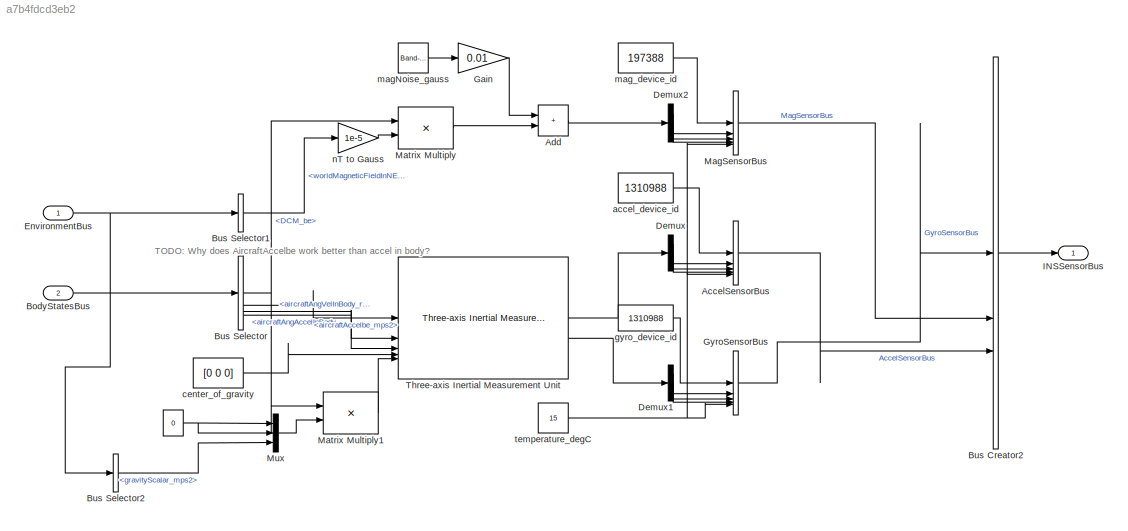
MODEL slx_a7b4fdcd3eb2
KIND model
BLOCK [Constant]  
  OutDataTypeStr = double
  Value = 0
  VectorParams1D = off
BLOCK [BusCreator] AccelSensorBus
  DisplayOption = bar
  InheritFromInputs = off
  Inputs = 5
  OutDataTypeStr = Bus: AccelSensorBus
BLOCK [Sum] Add
  IconShape = rectangular
BLOCK [Inport] BodyStatesBus
  OutDataTypeStr = Bus: BodyStateBus
  Port = 2
BLOCK [BusCreator] Bus Creator2
  DisplayOption = bar
  InheritFromInputs = off
  Inputs = 3
  OutDataTypeStr = Bus: INSSensorBus
BLOCK [BusSelector] Bus Selector
  OutputSignals = DCM_be,aircraftAccelbe_mps2,aircraftAngVelInBody_radps,aircraftAngAccelInBody_radps2
BLOCK [BusSelector] Bus Selector1
  OutputSignals = EarthEnvironment.worldMagneticFieldInNED_nT
BLOCK [BusSelector] Bus Selector2
  OutputSignals = EarthEnvironment.gravityScalar_mps2
BLOCK [Demux] Demux
  Outputs = 3
BLOCK [Demux] Demux1
  Outputs = 3
BLOCK [Demux] Demux2
  Outputs = 3
BLOCK [Inport] EnvironmentBus
  OutDataTypeStr = Bus: EnvironmentBus
BLOCK [Gain] Gain
  Gain = 0.01
BLOCK [BusCreator] GyroSensorBus
  DisplayOption = bar
  InheritFromInputs = off
  Inputs = 5
  OutDataTypeStr = Bus: GyroSensorBus
BLOCK [Outport] INSSensorBus
  OutDataTypeStr = Bus: INSSensorBus
BLOCK [BusCreator] MagSensorBus
  DisplayOption = bar
  InheritFromInputs = off
  Inputs = 5
  OutDataTypeStr = Bus: MagSensorBus
BLOCK [Product] Matrix Multiply
  Multiplication = Matrix(*)
BLOCK [Product] Matrix Multiply1
  Multiplication = Matrix(*)
BLOCK [Mux] Mux
  DisplayOption = bar
  Inputs = 3
BLOCK [Reference] Three-axis Inertial Measurement Unit  REF=aerolibnav/Three-axis Inertial
Measurement Unit
  SourceBlock = aerolibnav/Three-axis Inertial\nMeasurement Unit
  SourceType = Three-axis Inertial Measurement Unit
BLOCK [Constant] accel_device_id
  LockScale = on
  OutDataTypeStr = double
  Value = 1310988
BLOCK [Constant] center_of_gravity
  OutDataTypeStr = double
  Value = [0 0 0]
  VectorParams1D = off
BLOCK [Constant] gyro_device_id
  LockScale = on
  OutDataTypeStr = double
  Value = 1310988
BLOCK [Reference] magNoise_gauss  REF=simulink/Sources/Band-Limited
White Noise
  SourceBlock = simulink/Sources/Band-Limited\nWhite Noise
  SourceType = Band-Limited White Noise.
BLOCK [Constant] mag_device_id
  LockScale = on
  OutDataTypeStr = double
  Value = 197388
BLOCK [Gain] nT to Gauss
  Gain = 1e-5
BLOCK [Constant] temperature_degC
  OutDataTypeStr = Inherit: Inherit via back propagation
  Value = 15
ANNOTATION (root): TODO: Why does AircraftAccelbe work better than accel in body?
NET  :1 -> Mux:1, Mux:2
LINE AccelSensorBus:1 -> Bus Creator2:3
LINE Add:1 -> Demux2:1
LINE BodyStatesBus:1 -> Bus Selector:1
LINE Bus Creator2:1 -> INSSensorBus:1
LINE Bus Selector1:1 -> nT to Gauss:1
LINE Bus Selector2:1 -> Mux:3
NET Bus Selector:1 -> Matrix Multiply1:1, Matrix Multiply:1
LINE Bus Selector:2 -> Three-axis Inertial Measurement Unit:1
LINE Bus Selector:3 -> Three-axis Inertial Measurement Unit:2
LINE Bus Selector:4 -> Three-axis Inertial Measurement Unit:3
LINE Demux1:1 -> GyroSensorBus:2
LINE Demux1:2 -> GyroSensorBus:3
LINE Demux1:3 -> GyroSensorBus:4
LINE Demux2:1 -> MagSensorBus:2
LINE Demux2:2 -> MagSensorBus:3
LINE Demux2:3 -> MagSensorBus:4
LINE Demux:1 -> AccelSensorBus:2
LINE Demux:2 -> AccelSensorBus:3
LINE Demux:3 -> AccelSensorBus:4
NET EnvironmentBus:1 -> Bus Selector1:1, Bus Selector2:1
LINE Gain:1 -> Add:1
LINE GyroSensorBus:1 -> Bus Creator2:1
LINE MagSensorBus:1 -> Bus Creator2:2
LINE Matrix Multiply1:1 -> Three-axis Inertial Measurement Unit:5
LINE Matrix Multiply:1 -> Add:2
LINE Mux:1 -> Matrix Multiply1:2
LINE Three-axis Inertial Measurement Unit:1 -> Demux:1
LINE Three-axis Inertial Measurement Unit:2 -> Demux1:1
LINE accel_device_id:1 -> AccelSensorBus:1
LINE center_of_gravity:1 -> Three-axis Inertial Measurement Unit:4
LINE gyro_device_id:1 -> GyroSensorBus:1
LINE magNoise_gauss:1 -> Gain:1
LINE mag_device_id:1 -> MagSensorBus:1
LINE nT to Gauss:1 -> Matrix Multiply:2
NET temperature_degC:1 -> AccelSensorBus:5, GyroSensorBus:5, MagSensorBus:5
note: NET lines group one-source signal fan-out (src -> all destinations, sorted); 1:1 wires keep LINE
CHART Test Sequence states=6 transitions=6
  STATE_LABEL 'Scenario_1'
  STATE_LABEL "Initialize\nstopTest = false;\n\n%% Initialize data outputs.\nEnvironmentBus_EarthEnvironment.gravityScalar_mps2 = 9.8;\n%EnvironmentBus_EarthEnvironment.worldMagneticFieldInNED_nT = [40000 0 0]'; %this seems to have no effect\nEnvironmentBus_AirEnvironment.airTemperature_K = 0;\nEnvironmentBus_AirEnvironment.airPressure_Pa = 0;\nEnvironmentBus_AirEnvironment.airDensity_kgpm3 = 0;\nEnvironmentBus_AirEnviro...<+598ch>"
  STATE_LABEL "checkInsStatic\nverify(isClose(INSSensorBus.GyroSensorBus.x_radps, 0, 'atol', 0.01))\nverify(isClose(INSSensorBus.GyroSensorBus.y_radps, 0, 'atol', 0.01))\nverify(isClose(INSSensorBus.GyroSensorBus.z_radps, 0, 'atol', 0.01))\n\n%verify(isClose(INSSensorBus.MagSensorBus.x_Gauss, 0)) %TODO something seems off here\n%verify(isClose(INSSensorBus.MagSensorBus.y_Gauss, 0))\n%verify(isClose(INSSensorBus.MagSens...<+227ch>"
  STATE_LABEL "goInsDynamic\nBodyStatesBus.aircraftVelInNED_mps = zeros(3,1);\nBodyStatesBus.aircraftPosInNED_m = zeros(3,1);\nBodyStatesBus.aircraftEulerAngles_rad = zeros(3,1);\nBodyStatesBus.aircraftVelInBody_mps = zeros(3,1);\nBodyStatesBus.aircraftAngVelInBody_radps = [0.1 0.2 0.3]';\nBodyStatesBus.aircraftAngAccelInBody_radps2 = zeros(3,1);\nBodyStatesBus.aircraftAccelbe_mps2 = [1 2 3]';\nBodyStatesBus.DCM_be = ze...<+9ch>"
  STATE_LABEL "checkInsDynamic\nverify(isClose(INSSensorBus.GyroSensorBus.x_radps, 0.1, 'atol', 0.01))\nverify(isClose(INSSensorBus.GyroSensorBus.y_radps, 0.2, 'atol', 0.01))\nverify(isClose(INSSensorBus.GyroSensorBus.z_radps, 0.3, 'atol', 0.01))\n\n%wtf\nverify(isClose(INSSensorBus.MagSensorBus.x_Gauss, 0, 'atol', 0.01))\nverify(isClose(INSSensorBus.MagSensorBus.y_Gauss, 0, 'atol', 0.01))\nverify(isClose(INSSensorBus.M...<+247ch>"
  STATE_LABEL 'EndTest\nstopTest = true;'
  STATE_LABEL '[\nafter(5,sec)\n]'
  STATE_LABEL '[\ntrue\n]'
  STATE_LABEL '[\nafter(5,sec)\n]'
  STATE_LABEL '[\ntrue\n]'
  STATE_LABEL "Initialize\nstopTest = false;\n\n%% Initialize data outputs.\nEnvironmentBus_EarthEnvironment.gravityScalar_mps2 = 9.8;\n%EnvironmentBus_EarthEnvironment.worldMagneticFieldInNED_nT = [40000 0 0]'; %this seems to have no effect\nEnvironmentBus_AirEnvironment.airTemperature_K = 0;\nEnvironmentBus_AirEnvironment.airPressure_Pa = 0;\nEnvironmentBus_AirEnvironment.airDensity_kgpm3 = 0;\nEnvironmentBus_AirEnviro...<+598ch>"
  STATE_LABEL "checkInsStatic\nverify(isClose(INSSensorBus.GyroSensorBus.x_radps, 0, 'atol', 0.01))\nverify(isClose(INSSensorBus.GyroSensorBus.y_radps, 0, 'atol', 0.01))\nverify(isClose(INSSensorBus.GyroSensorBus.z_radps, 0, 'atol', 0.01))\n\n%verify(isClose(INSSensorBus.MagSensorBus.x_Gauss, 0)) %TODO something seems off here\n%verify(isClose(INSSensorBus.MagSensorBus.y_Gauss, 0))\n%verify(isClose(INSSensorBus.MagSens...<+227ch>"
  STATE_LABEL "goInsDynamic\nBodyStatesBus.aircraftVelInNED_mps = zeros(3,1);\nBodyStatesBus.aircraftPosInNED_m = zeros(3,1);\nBodyStatesBus.aircraftEulerAngles_rad = zeros(3,1);\nBodyStatesBus.aircraftVelInBody_mps = zeros(3,1);\nBodyStatesBus.aircraftAngVelInBody_radps = [0.1 0.2 0.3]';\nBodyStatesBus.aircraftAngAccelInBody_radps2 = zeros(3,1);\nBodyStatesBus.aircraftAccelbe_mps2 = [1 2 3]';\nBodyStatesBus.DCM_be = ze...<+9ch>"
  STATE_LABEL "checkInsDynamic\nverify(isClose(INSSensorBus.GyroSensorBus.x_radps, 0.1, 'atol', 0.01))\nverify(isClose(INSSensorBus.GyroSensorBus.y_radps, 0.2, 'atol', 0.01))\nverify(isClose(INSSensorBus.GyroSensorBus.z_radps, 0.3, 'atol', 0.01))\n\n%wtf\nverify(isClose(INSSensorBus.MagSensorBus.x_Gauss, 0, 'atol', 0.01))\nverify(isClose(INSSensorBus.MagSensorBus.y_Gauss, 0, 'atol', 0.01))\nverify(isClose(INSSensorBus.M...<+247ch>"
  STATE_LABEL 'EndTest\nstopTest = true;'
